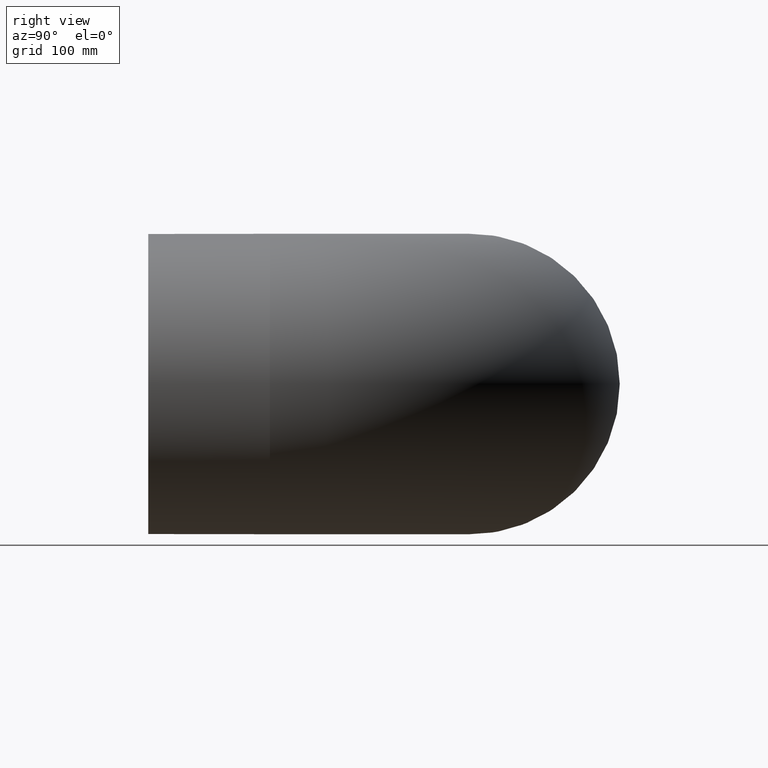
[diagram: clean part render]
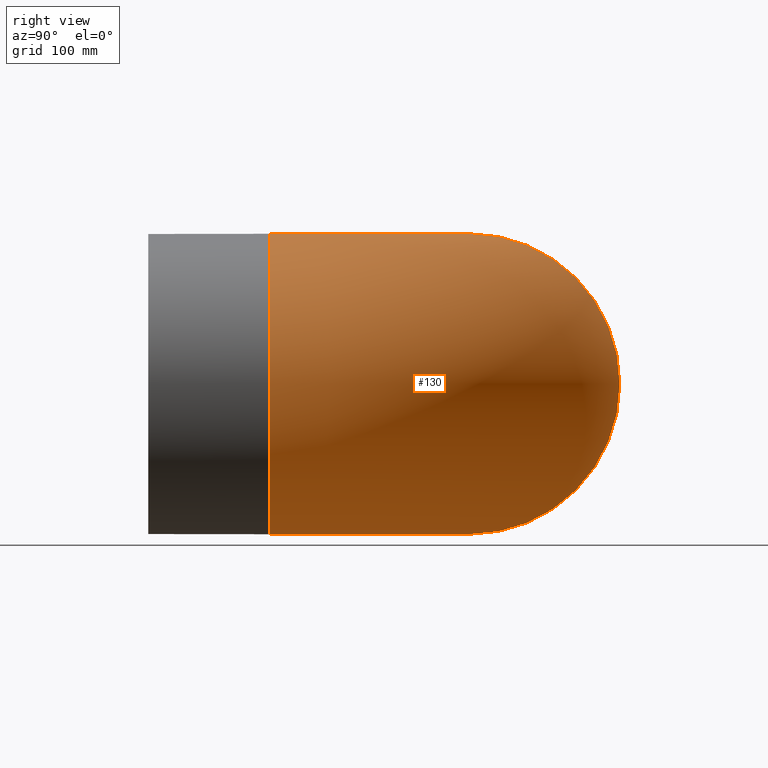
[diagram: same view with one face highlighted and labeled with its STEP entity id]
A machine part, right view. The second image highlights one B-rep face of the part: STEP entity #130.
In plain terms, the highlighted toroidal blend (fillet) surface has major radius 210 mm and minor (blend) radius 158 mm.
Its self-contained STEP definition (entity closure, byte-faithful):
#28=FACE_BOUND('',#56,.T.);
#39=FACE_OUTER_BOUND('',#55,.T.);
#55=EDGE_LOOP('',(#110));
#56=EDGE_LOOP('',(#111));
#73=CIRCLE('',#150,158.);
#74=CIRCLE('',#151,158.);
#84=VERTEX_POINT('',#225);
#85=VERTEX_POINT('',#227);
#95=EDGE_CURVE('',#84,#84,#73,.T.);
#96=EDGE_CURVE('',#85,#85,#74,.T.);
#110=ORIENTED_EDGE('',*,*,#95,.T.);
#111=ORIENTED_EDGE('',*,*,#96,.T.);
#123=TOROIDAL_SURFACE('',#149,210.,158.);
#130=ADVANCED_FACE('',(#39,#28),#123,.T.);
#149=AXIS2_PLACEMENT_3D('',#224,#184,#185);
#150=AXIS2_PLACEMENT_3D('',#226,#186,#187);
#151=AXIS2_PLACEMENT_3D('',#228,#188,#189);
#184=DIRECTION('center_axis',(0.,0.,-1.));
#185=DIRECTION('ref_axis',(-1.,0.,0.));
#186=DIRECTION('center_axis',(6.12323399573677E-17,1.,0.));
#187=DIRECTION('ref_axis',(0.,0.,-1.));
#188=DIRECTION('center_axis',(1.,0.,0.));
#189=DIRECTION('ref_axis',(0.,0.,-1.));
#224=CARTESIAN_POINT('Origin',(-210.,-210.,0.));
#225=CARTESIAN_POINT('',(-1.77635683940025E-14,-210.,158.));
#226=CARTESIAN_POINT('Origin',(-1.28587913910472E-14,-210.,0.));
#227=CARTESIAN_POINT('',(-210.,-3.86988388530564E-14,-158.));
#228=CARTESIAN_POINT('Origin',(-210.,0.,0.));